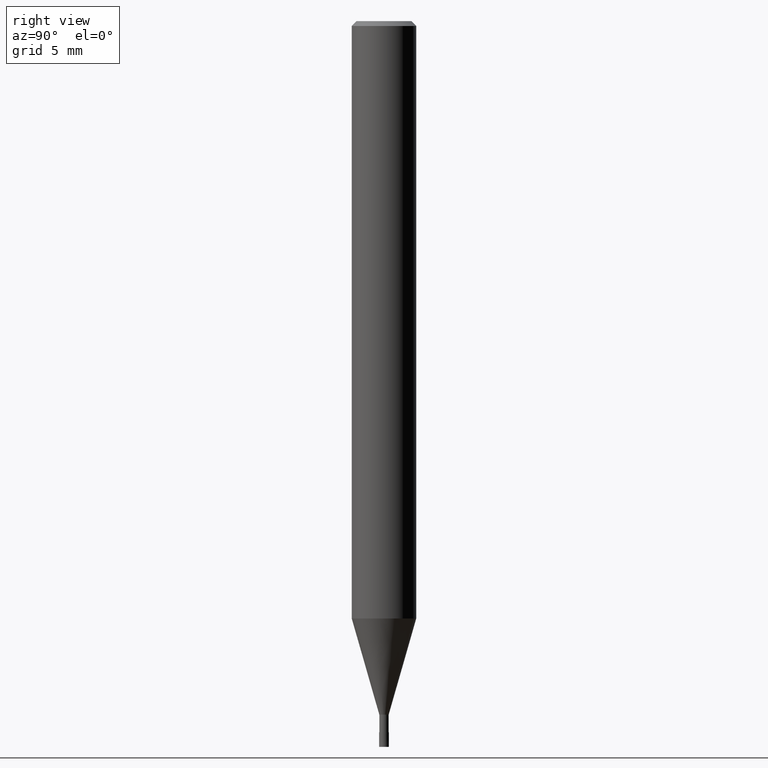
[diagram: clean part render]
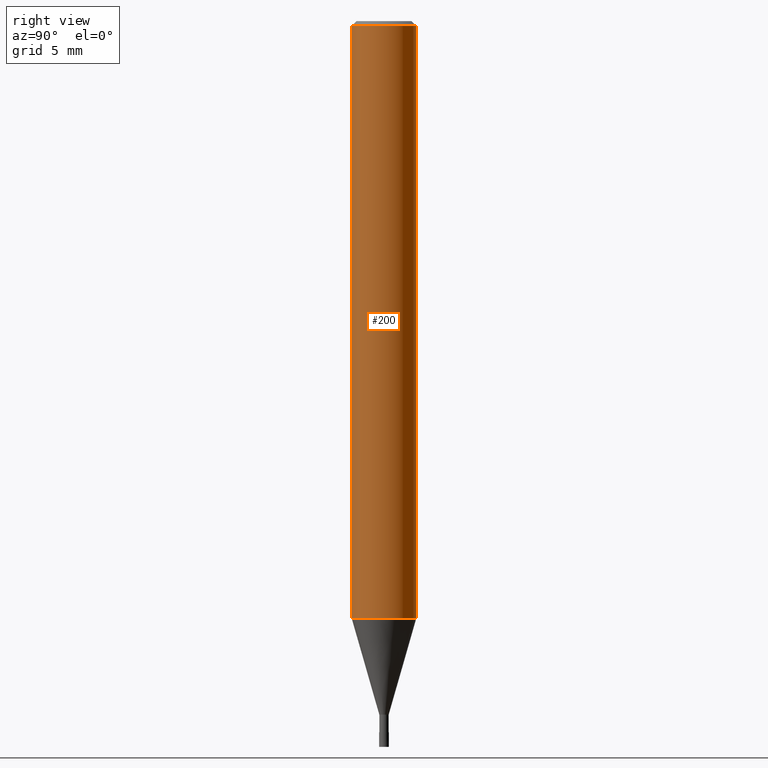
[diagram: same view with one face highlighted and labeled with its STEP entity id]
A machine part, right view. The second image highlights one B-rep face of the part: STEP entity #200.
In plain terms, the highlighted cylindrical surface (edge-blend (fillet) strip) has radius 2 mm, axis along (-0, -0, 1).
Its self-contained STEP definition (entity closure, byte-faithful):
#94=VERTEX_POINT('',#231);
#98=VERTEX_POINT('',#235);
#120=VERTEX_POINT('',#260);
#142=EDGE_CURVE('',#94,#98,#284,.T.);
#164=EDGE_CURVE('',#120,#198,#310,.T.);
#186=EDGE_CURVE('',#198,#98,#334,.T.);
#198=VERTEX_POINT('',#348);
#200=ADVANCED_FACE('',(#350),#351,.T.);
#202=EDGE_CURVE('',#94,#120,#353,.T.);
#231=CARTESIAN_POINT('',(0.0,2.0,-0.299999999999997));
#235=CARTESIAN_POINT('',(2.44921270764475E-016,-2.0,-0.299999999999997));
#260=CARTESIAN_POINT('',(0.0,2.0,-37.037));
#284=CIRCLE('',#447,2.0);
#310=CIRCLE('',#479,2.0);
#334=LINE('',#506,#507);
#348=CARTESIAN_POINT('',(2.44921270764475E-016,-2.0,-37.037));
#350=FACE_OUTER_BOUND('',#527,.T.);
#351=CYLINDRICAL_SURFACE('',#528,2.0);
#353=LINE('',#531,#532);
#447=AXIS2_PLACEMENT_3D('',#608,#609,#610);
#479=AXIS2_PLACEMENT_3D('',#643,#644,#645);
#506=CARTESIAN_POINT('',(2.44921270764475E-016,-2.0,-18.6685));
#507=VECTOR('',#667,1.0);
#527=EDGE_LOOP('',(#692,#693,#694,#695));
#528=AXIS2_PLACEMENT_3D('',#696,#697,#698);
#531=CARTESIAN_POINT('',(-2.44921270764475E-016,2.0,-18.6685));
#532=VECTOR('',#699,1.0);
#608=CARTESIAN_POINT('',(0.0,0.0,-0.299999999999997));
#609=DIRECTION('',(0.0,0.0,-1.0));
#610=DIRECTION('',(0.0,1.0,0.0));
#643=CARTESIAN_POINT('',(0.0,0.0,-37.037));
#644=DIRECTION('',(0.0,0.0,-1.0));
#645=DIRECTION('',(0.0,1.0,0.0));
#667=DIRECTION('',(-0.0,-0.0,1.0));
#692=ORIENTED_EDGE('',*,*,#202,.F.);
#693=ORIENTED_EDGE('',*,*,#142,.T.);
#694=ORIENTED_EDGE('',*,*,#186,.F.);
#695=ORIENTED_EDGE('',*,*,#164,.F.);
#696=CARTESIAN_POINT('',(0.0,0.0,-18.6685));
#697=DIRECTION('',(-0.0,-0.0,1.0));
#698=DIRECTION('',(0.0,1.0,0.0));
#699=DIRECTION('',(0.0,0.0,-1.0));